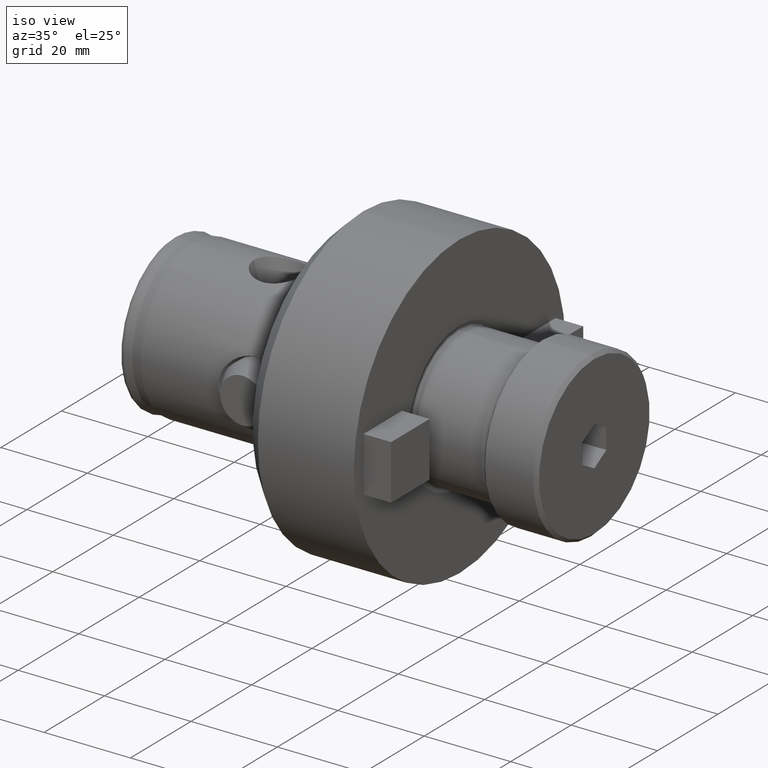
[diagram: clean part render]
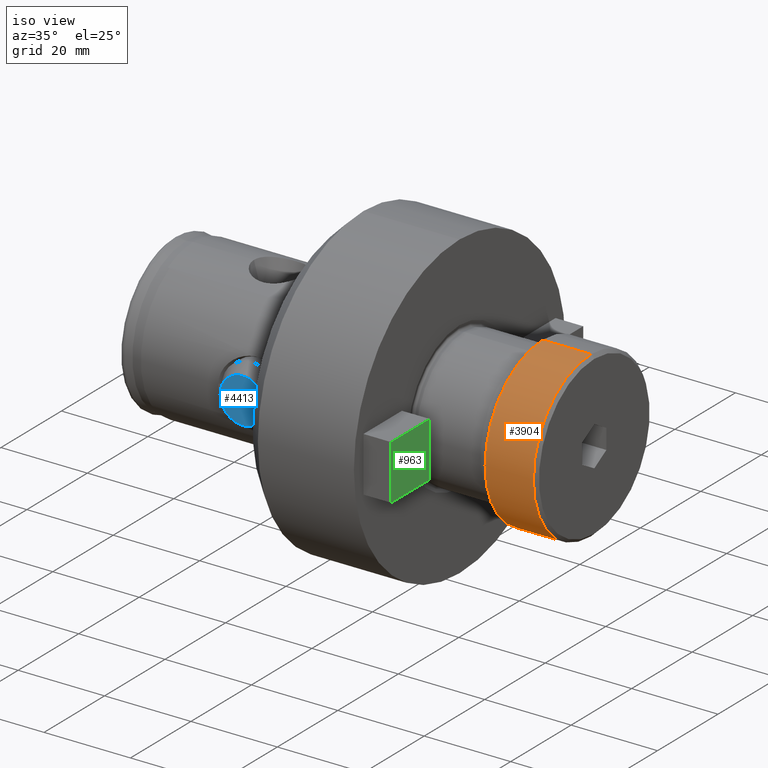
[diagram: same view with three faces highlighted in distinct colors, each labeled with its STEP entity id]
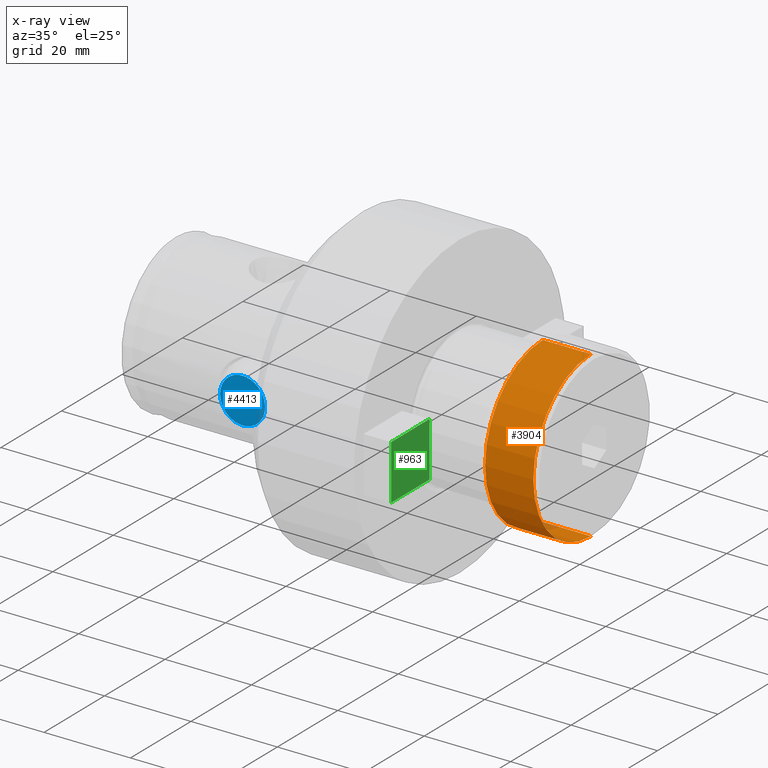
[diagram: x-ray of the same camera — body ghosted, the three highlighted faces saturated]
A machine part, iso view with three faces highlighted in distinct colors.
The next image is the same camera in x-ray (body ghosted, the three faces saturated) — at least one of them is partly hidden behind the body in this view.
Their STEP definitions:

[orange] entity #3904 — the highlighted cylindrical surface (partial cylindrical patch) has radius 19.05 mm, axis along (1, 0, -0).
#58 = ORIENTED_EDGE ( 'NONE', *, *, #3654, .F. ) ;
#102 = LINE ( 'NONE', #4558, #4585 ) ;
#111 = EDGE_CURVE ( 'NONE', #7960, #3118, #6710, .T. ) ;
#613 = CARTESIAN_POINT ( 'NONE',  ( -31.74999999999994300, 0.0000000000000000000, 0.0000000000000000000 ) ) ;
#1573 = VECTOR ( 'NONE', #5868, 1000.000000000000000 ) ;
#1633 = AXIS2_PLACEMENT_3D ( 'NONE', #6544, #2593, #2650 ) ;
#1909 = AXIS2_PLACEMENT_3D ( 'NONE', #5236, #1927, #6521 ) ;
#1919 = CARTESIAN_POINT ( 'NONE',  ( 0.7619999999999849100, 0.0000000000000000000, 19.05000000000000100 ) ) ;
#1927 = DIRECTION ( 'NONE',  ( -1.000000000000000000, 0.0000000000000000000, 0.0000000000000000000 ) ) ;
#2308 = CARTESIAN_POINT ( 'NONE',  ( 11.93800000000000400, 2.332952152375708000E-015, -19.05000000000000100 ) ) ;
#2578 = EDGE_LOOP ( 'NONE', ( #7697, #5187, #8346, #58 ) ) ;
#2593 = DIRECTION ( 'NONE',  ( -1.000000000000000000, 0.0000000000000000000, 0.0000000000000000000 ) ) ;
#2650 = DIRECTION ( 'NONE',  ( 0.0000000000000000000, 0.0000000000000000000, 1.000000000000000000 ) ) ;
#2695 = VERTEX_POINT ( 'NONE', #1919 ) ;
#3022 = CIRCLE ( 'NONE', #1909, 19.05000000000000100 ) ;
#3118 = VERTEX_POINT ( 'NONE', #8652 ) ;
#3288 = CARTESIAN_POINT ( 'NONE',  ( 11.93800000000000400, 0.0000000000000000000, 19.05000000000000100 ) ) ;
#3654 = EDGE_CURVE ( 'NONE', #3118, #2695, #3022, .T. ) ;
#3904 = ADVANCED_FACE ( 'NONE', ( #5442 ), #6369, .T. ) ;
#4252 = VERTEX_POINT ( 'NONE', #3288 ) ;
#4558 = CARTESIAN_POINT ( 'NONE',  ( -31.74999999999994300, 0.0000000000000000000, 19.05000000000000100 ) ) ;
#4585 = VECTOR ( 'NONE', #7332, 1000.000000000000000 ) ;
#4842 = AXIS2_PLACEMENT_3D ( 'NONE', #613, #5297, #5967 ) ;
#4923 = EDGE_CURVE ( 'NONE', #4252, #2695, #102, .T. ) ;
#5187 = ORIENTED_EDGE ( 'NONE', *, *, #8194, .T. ) ;
#5236 = CARTESIAN_POINT ( 'NONE',  ( 0.7619999999999849100, 0.0000000000000000000, 0.0000000000000000000 ) ) ;
#5297 = DIRECTION ( 'NONE',  ( -1.000000000000000000, 0.0000000000000000000, 0.0000000000000000000 ) ) ;
#5442 = FACE_OUTER_BOUND ( 'NONE', #2578, .T. ) ;
#5868 = DIRECTION ( 'NONE',  ( -1.000000000000000000, 0.0000000000000000000, 0.0000000000000000000 ) ) ;
#5967 = DIRECTION ( 'NONE',  ( 0.0000000000000000000, 0.0000000000000000000, 1.000000000000000000 ) ) ;
#6369 = CYLINDRICAL_SURFACE ( 'NONE', #4842, 19.05000000000000100 ) ;
#6521 = DIRECTION ( 'NONE',  ( 0.0000000000000000000, 0.0000000000000000000, 1.000000000000000000 ) ) ;
#6544 = CARTESIAN_POINT ( 'NONE',  ( 11.93800000000000400, 0.0000000000000000000, 0.0000000000000000000 ) ) ;
#6710 = LINE ( 'NONE', #7928, #1573 ) ;
#7332 = DIRECTION ( 'NONE',  ( -1.000000000000000000, 0.0000000000000000000, 0.0000000000000000000 ) ) ;
#7697 = ORIENTED_EDGE ( 'NONE', *, *, #111, .F. ) ;
#7900 = CIRCLE ( 'NONE', #1633, 19.05000000000000100 ) ;
#7928 = CARTESIAN_POINT ( 'NONE',  ( -31.74999999999994300, 2.332952152375708000E-015, -19.05000000000000100 ) ) ;
#7960 = VERTEX_POINT ( 'NONE', #2308 ) ;
#8194 = EDGE_CURVE ( 'NONE', #7960, #4252, #7900, .T. ) ;
#8346 = ORIENTED_EDGE ( 'NONE', *, *, #4923, .T. ) ;
#8652 = CARTESIAN_POINT ( 'NONE',  ( 0.7619999999999849100, 2.332952152375708000E-015, -19.05000000000000100 ) ) ;

[blue] entity #4413 — the highlighted planar face has unit normal (0, 1, 0).
#5 = DIRECTION ( 'NONE',  ( 1.000000000000000000, -8.378013236344267000E-032, 2.465190328815642700E-032 ) ) ;
#47 = EDGE_LOOP ( 'NONE', ( #3708, #4963 ) ) ;
#224 = CIRCLE ( 'NONE', #6512, 5.217949192431164300 ) ;
#498 = FACE_OUTER_BOUND ( 'NONE', #47, .T. ) ;
#1535 = DIRECTION ( 'NONE',  ( -1.000000000000000000, 8.378013236344267000E-032, 6.171883090740398700E-032 ) ) ;
#2057 = PLANE ( 'NONE',  #3816 ) ;
#2535 = CARTESIAN_POINT ( 'NONE',  ( 0.0000000000000000000, 0.0000000000000000000, 0.0000000000000000000 ) ) ;
#2792 = CARTESIAN_POINT ( 'NONE',  ( 0.0000000000000000000, 0.0000000000000000000, 0.0000000000000000000 ) ) ;
#2926 = EDGE_CURVE ( 'NONE', #6452, #3234, #224, .T. ) ;
#3234 = VERTEX_POINT ( 'NONE', #6846 ) ;
#3708 = ORIENTED_EDGE ( 'NONE', *, *, #8411, .T. ) ;
#3816 = AXIS2_PLACEMENT_3D ( 'NONE', #2792, #5, #4692 ) ;
#4413 = ADVANCED_FACE ( 'NONE', ( #498 ), #2057, .F. ) ;
#4692 = DIRECTION ( 'NONE',  ( 2.465190328815642200E-032, -5.551115123125738300E-017, -1.000000000000000000 ) ) ;
#4963 = ORIENTED_EDGE ( 'NONE', *, *, #2926, .T. ) ;
#5131 = CARTESIAN_POINT ( 'NONE',  ( 3.220457238910817200E-031, 1.082800435432570000E-015, 5.217949192431122500 ) ) ;
#5178 = DIRECTION ( 'NONE',  ( -1.000000000000000000, 8.378013236344267000E-032, 6.171883090740398700E-032 ) ) ;
#5905 = DIRECTION ( 'NONE',  ( 2.465190328815642200E-032, -5.551115123125738300E-017, -1.000000000000000000 ) ) ;
#6217 = DIRECTION ( 'NONE',  ( 2.465190328815642200E-032, -5.551115123125738300E-017, -1.000000000000000000 ) ) ;
#6452 = VERTEX_POINT ( 'NONE', #5131 ) ;
#6512 = AXIS2_PLACEMENT_3D ( 'NONE', #2535, #5178, #5905 ) ;
#6846 = CARTESIAN_POINT ( 'NONE',  ( 1.286323788543269600E-031, -2.896543667380636900E-016, -5.217949192431164300 ) ) ;
#7178 = CIRCLE ( 'NONE', #8158, 5.217949192431164300 ) ;
#8158 = AXIS2_PLACEMENT_3D ( 'NONE', #8191, #1535, #6217 ) ;
#8191 = CARTESIAN_POINT ( 'NONE',  ( 0.0000000000000000000, 0.0000000000000000000, 0.0000000000000000000 ) ) ;
#8411 = EDGE_CURVE ( 'NONE', #3234, #6452, #7178, .T. ) ;

[green] entity #963 — the highlighted planar face has unit normal (1, 0, 0).
#223 = CARTESIAN_POINT ( 'NONE',  ( 6.400800000000000300, 6.350000000000000500, 6.349999999999999600 ) ) ;
#464 = ORIENTED_EDGE ( 'NONE', *, *, #2790, .T. ) ;
#595 = VERTEX_POINT ( 'NONE', #6851 ) ;
#724 = DIRECTION ( 'NONE',  ( 0.0000000000000000000, -1.365923996832131600E-016, -1.000000000000000000 ) ) ;
#751 = PLANE ( 'NONE',  #6602 ) ;
#963 = ADVANCED_FACE ( 'NONE', ( #8298 ), #751, .T. ) ;
#990 = CARTESIAN_POINT ( 'NONE',  ( 6.400800000000000300, 6.350000000000000500, 6.349999999999999600 ) ) ;
#1065 = VECTOR ( 'NONE', #3398, 1000.000000000000000 ) ;
#1072 = DIRECTION ( 'NONE',  ( 0.0000000000000000000, -1.000000000000000000, -1.365923996832131600E-016 ) ) ;
#1083 = DIRECTION ( 'NONE',  ( -0.0000000000000000000, 1.365923996832131600E-016, 1.000000000000000000 ) ) ;
#1502 = DIRECTION ( 'NONE',  ( 1.000000000000000000, 0.0000000000000000000, 0.0000000000000000000 ) ) ;
#1563 = EDGE_CURVE ( 'NONE', #1623, #8413, #3473, .T. ) ;
#1623 = VERTEX_POINT ( 'NONE', #2734 ) ;
#2366 = CARTESIAN_POINT ( 'NONE',  ( 6.400800000000000300, -6.349999999999998800, 6.349999999999997900 ) ) ;
#2455 = ORIENTED_EDGE ( 'NONE', *, *, #5347, .T. ) ;
#2734 = CARTESIAN_POINT ( 'NONE',  ( 6.400800000000000300, -6.350000000000000500, -6.350000000000003200 ) ) ;
#2790 = EDGE_CURVE ( 'NONE', #5329, #1623, #6924, .T. ) ;
#2854 = CARTESIAN_POINT ( 'NONE',  ( 6.400800000000000300, -6.349999999999998800, 6.349999999999997900 ) ) ;
#3315 = CARTESIAN_POINT ( 'NONE',  ( 6.400800000000000300, 6.349999999999998800, -6.349999999999999600 ) ) ;
#3398 = DIRECTION ( 'NONE',  ( -0.0000000000000000000, 1.000000000000000000, 2.731847993664263200E-016 ) ) ;
#3473 = LINE ( 'NONE', #3315, #1065 ) ;
#4660 = EDGE_LOOP ( 'NONE', ( #2455, #464, #6688, #4851 ) ) ;
#4783 = CARTESIAN_POINT ( 'NONE',  ( 6.400800000000000300, -6.349999999999998800, 6.349999999999997900 ) ) ;
#4851 = ORIENTED_EDGE ( 'NONE', *, *, #6268, .T. ) ;
#4903 = VECTOR ( 'NONE', #1072, 1000.000000000000000 ) ;
#5329 = VERTEX_POINT ( 'NONE', #2366 ) ;
#5347 = EDGE_CURVE ( 'NONE', #595, #5329, #5532, .T. ) ;
#5532 = LINE ( 'NONE', #990, #4903 ) ;
#5762 = VECTOR ( 'NONE', #724, 1000.000000000000000 ) ;
#6044 = CARTESIAN_POINT ( 'NONE',  ( 6.400800000000000300, 6.349999999999998800, -6.349999999999999600 ) ) ;
#6268 = EDGE_CURVE ( 'NONE', #8413, #595, #7299, .T. ) ;
#6602 = AXIS2_PLACEMENT_3D ( 'NONE', #2854, #1502, #6778 ) ;
#6688 = ORIENTED_EDGE ( 'NONE', *, *, #1563, .T. ) ;
#6778 = DIRECTION ( 'NONE',  ( 0.0000000000000000000, 0.0000000000000000000, -1.000000000000000000 ) ) ;
#6851 = CARTESIAN_POINT ( 'NONE',  ( 6.400800000000000300, 6.350000000000000500, 6.349999999999999600 ) ) ;
#6924 = LINE ( 'NONE', #4783, #5762 ) ;
#7299 = LINE ( 'NONE', #223, #8237 ) ;
#8237 = VECTOR ( 'NONE', #1083, 1000.000000000000000 ) ;
#8298 = FACE_OUTER_BOUND ( 'NONE', #4660, .T. ) ;
#8413 = VERTEX_POINT ( 'NONE', #6044 ) ;